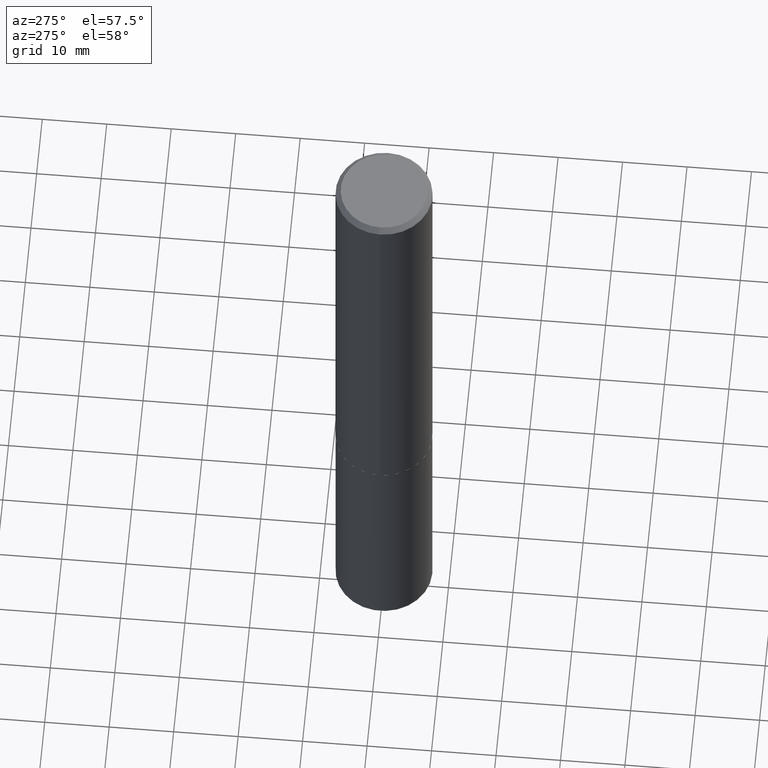
[diagram: clean part render]
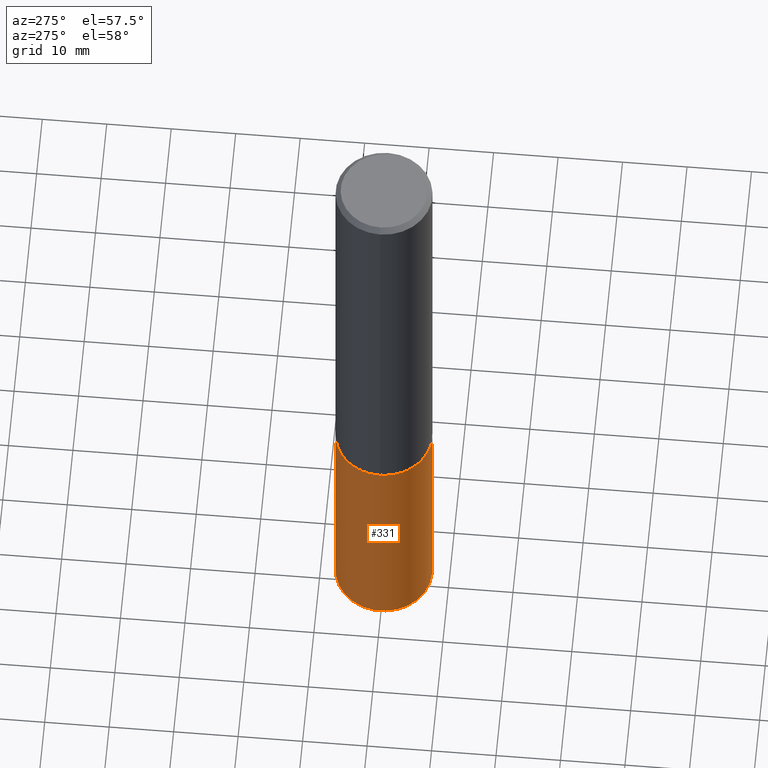
[diagram: same view with one face highlighted and labeled with its STEP entity id]
A machine part, auxiliary view. The second image highlights one B-rep face of the part: STEP entity #331.
In plain terms, the highlighted cylindrical surface (partial cylindrical patch) has radius 7.5006 mm, axis along (-0, 0, 1).
Its self-contained STEP definition (entity closure, byte-faithful):
#7 = EDGE_LOOP ( 'NONE', ( #247, #364, #180, #209 ) ) ;
#19 = AXIS2_PLACEMENT_3D ( 'NONE', #280, #308, #190 ) ;
#30 = EDGE_CURVE ( 'NONE', #370, #80, #129, .T. ) ;
#33 = VECTOR ( 'NONE', #253, 39.37007874015748143 ) ;
#36 = CARTESIAN_POINT ( 'NONE',  ( -2.062068878720649644E-15, -0.2953000000000150504, -4.290974603475088855 ) ) ;
#45 = LINE ( 'NONE', #120, #33 ) ;
#53 = VECTOR ( 'NONE', #142, 39.37007874015748143 ) ;
#64 = CARTESIAN_POINT ( 'NONE',  ( 6.739712029846235896E-29, -9.622522569851707902E-15, -2.755999999999999783 ) ) ;
#80 = VERTEX_POINT ( 'NONE', #279 ) ;
#90 = EDGE_CURVE ( 'NONE', #176, #80, #45, .T. ) ;
#109 = CYLINDRICAL_SURFACE ( 'NONE', #177, 0.2953000000000000069 ) ;
#120 = CARTESIAN_POINT ( 'NONE',  ( -2.062068878720687115E-15, -0.2953000000000096659, -2.755999999999998895 ) ) ;
#129 = CIRCLE ( 'NONE', #338, 0.2953000000000000069 ) ;
#132 = LINE ( 'NONE', #368, #53 ) ;
#140 = EDGE_CURVE ( 'NONE', #333, #370, #132, .T. ) ;
#142 = DIRECTION ( 'NONE',  ( -2.445353893289901257E-29, 3.491645900649558124E-15, 1.000000000000000000 ) ) ;
#148 = EDGE_CURVE ( 'NONE', #333, #176, #214, .T. ) ;
#166 = CARTESIAN_POINT ( 'NONE',  ( 6.739712029846235896E-29, -9.622522569851707902E-15, -2.755999999999999783 ) ) ;
#176 = VERTEX_POINT ( 'NONE', #36 ) ;
#177 = AXIS2_PLACEMENT_3D ( 'NONE', #166, #361, #264 ) ;
#180 = ORIENTED_EDGE ( 'NONE', *, *, #90, .T. ) ;
#190 = DIRECTION ( 'NONE',  ( -6.982962677686266711E-15, -1.000000000000000000, 3.700437512582815297E-15 ) ) ;
#209 = ORIENTED_EDGE ( 'NONE', *, *, #30, .F. ) ;
#214 = CIRCLE ( 'NONE', #19, 0.2953000000000000069 ) ;
#215 = DIRECTION ( 'NONE',  ( -6.982962677686266711E-15, -1.000000000000000000, 3.700437512582815297E-15 ) ) ;
#230 = CARTESIAN_POINT ( 'NONE',  ( 2.098232698699681211E-15, 0.2952999999999904035, -2.756000000000000671 ) ) ;
#247 = ORIENTED_EDGE ( 'NONE', *, *, #140, .F. ) ;
#253 = DIRECTION ( 'NONE',  ( -2.445353893289901257E-29, 3.491645900649558124E-15, 1.000000000000000000 ) ) ;
#256 = DIRECTION ( 'NONE',  ( -2.445353893289901257E-29, 3.491645900649558519E-15, 1.000000000000000000 ) ) ;
#264 = DIRECTION ( 'NONE',  ( -6.982962677686266711E-15, -1.000000000000000000, 3.700437512582815297E-15 ) ) ;
#279 = CARTESIAN_POINT ( 'NONE',  ( -2.062068878720687115E-15, -0.2953000000000096659, -2.755999999999998895 ) ) ;
#280 = CARTESIAN_POINT ( 'NONE',  ( 1.049326815255516956E-28, -1.498211035167668908E-14, -4.290974603475089744 ) ) ;
#293 = CARTESIAN_POINT ( 'NONE',  ( 2.098232698699680817E-15, 0.2952999999999850744, -4.290974603475090632 ) ) ;
#308 = DIRECTION ( 'NONE',  ( -2.445353893289901257E-29, 3.491645900649558519E-15, 1.000000000000000000 ) ) ;
#331 = ADVANCED_FACE ( 'NONE', ( #387 ), #109, .T. ) ;
#333 = VERTEX_POINT ( 'NONE', #293 ) ;
#338 = AXIS2_PLACEMENT_3D ( 'NONE', #64, #256, #215 ) ;
#361 = DIRECTION ( 'NONE',  ( -2.445353893289901257E-29, 3.491645900649558519E-15, 1.000000000000000000 ) ) ;
#364 = ORIENTED_EDGE ( 'NONE', *, *, #148, .T. ) ;
#368 = CARTESIAN_POINT ( 'NONE',  ( 2.098232698699643346E-15, 0.2952999999999904035, -2.756000000000000671 ) ) ;
#370 = VERTEX_POINT ( 'NONE', #230 ) ;
#387 = FACE_OUTER_BOUND ( 'NONE', #7, .T. ) ;